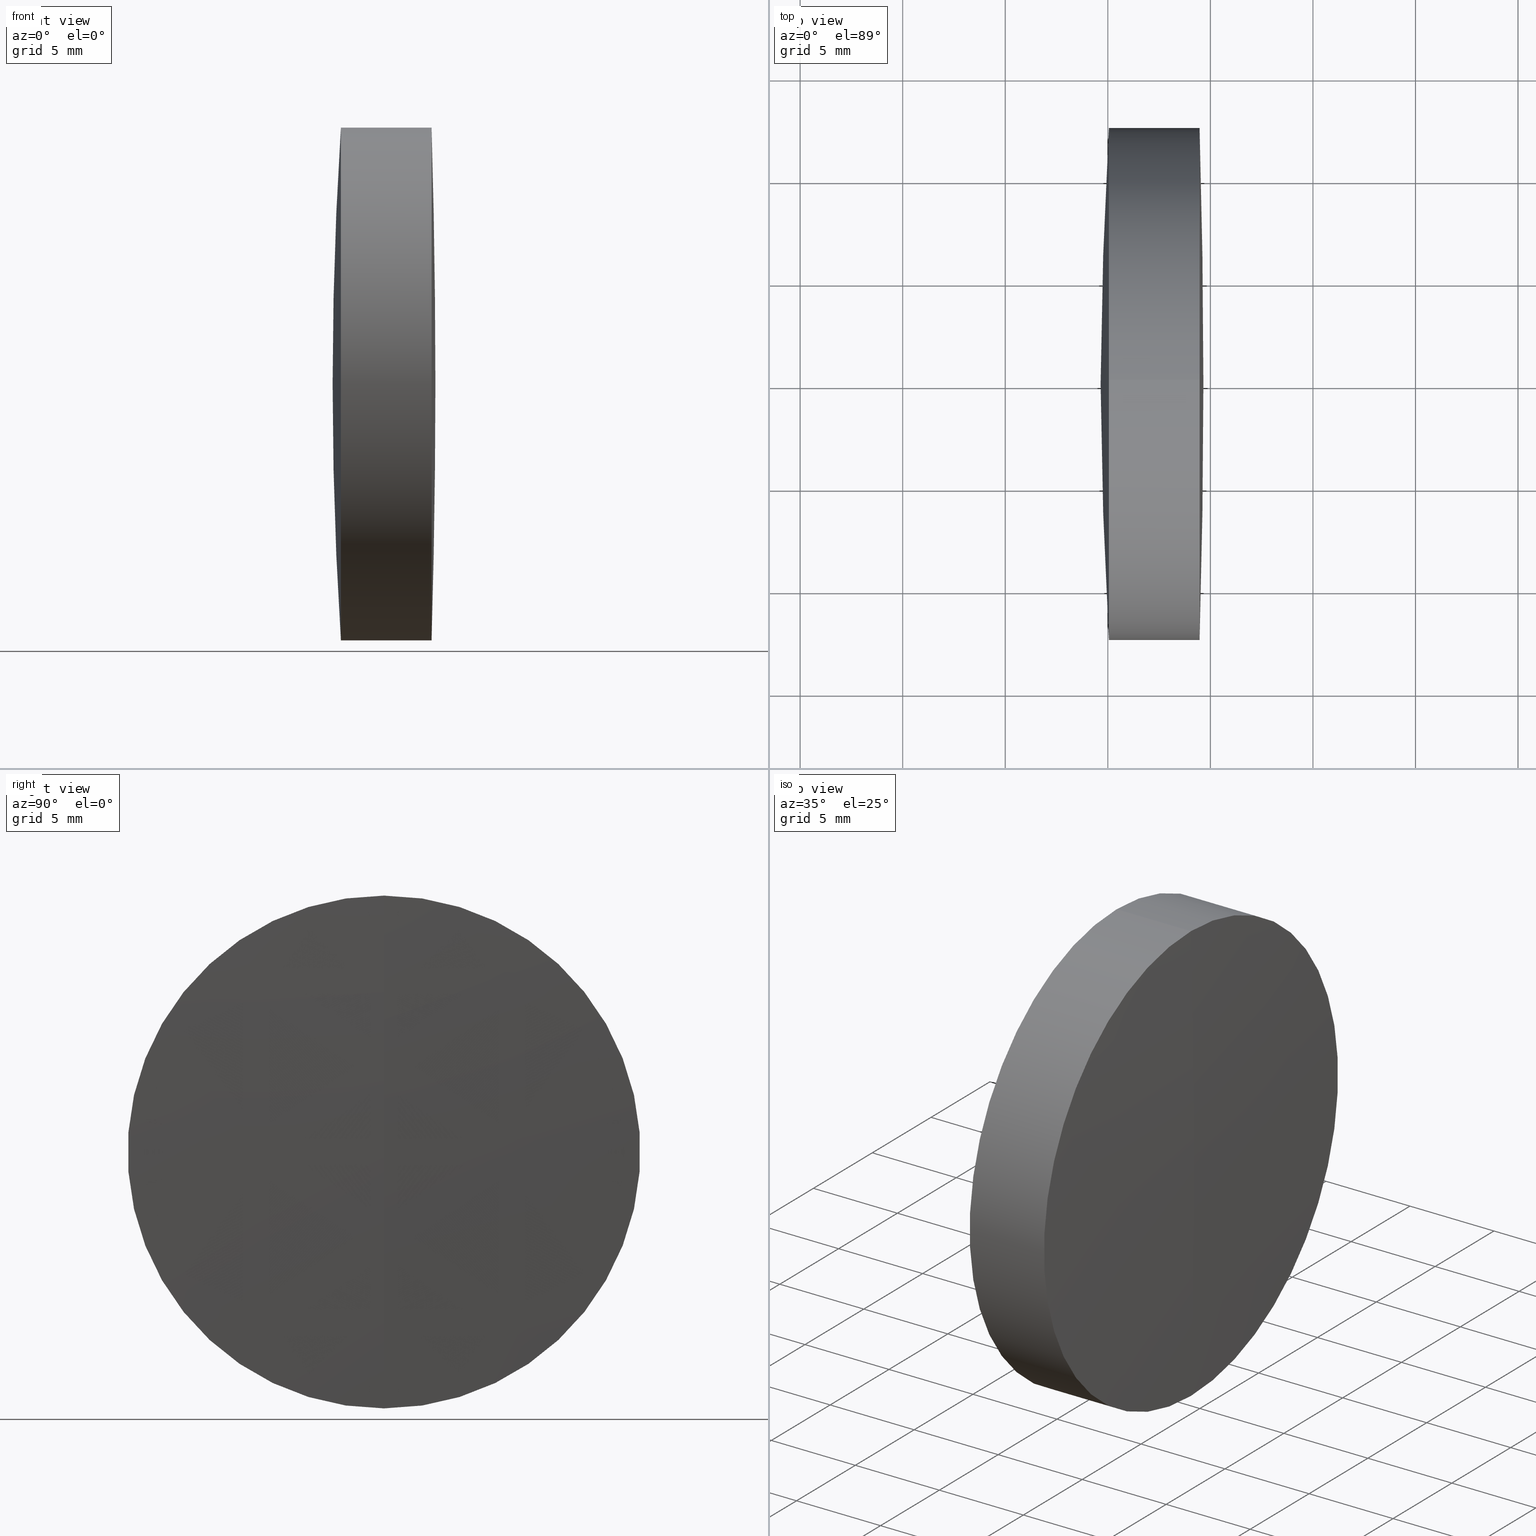
[diagram: canonical four-view strip — front | top / right | iso, engineering-drawing reading convention]
A machine part, canonical four-view strip (front | top / right | iso — engineering-drawing reading convention). The complete STEP part file that produces these views, byte-faithful:
ISO-10303-21;
HEADER;
FILE_DESCRIPTION (( 'STEP AP214' ),
    '1' );
FILE_NAME ('145047.STEP',
    '2019-05-12T07:35:42',
    ( 'user' ),
    ( '΢���й�' ),
    'SwSTEP 2.0',
    'SolidWorks 2016',
    '' );
FILE_SCHEMA (( 'AUTOMOTIVE_DESIGN' ));
ENDSEC;

DATA;
#1 = CIRCLE ( 'NONE', #112, 420.5500000000000100 ) ;
#2 = STYLED_ITEM ( 'NONE', ( #336 ), #41 ) ;
#3 = ORIENTED_EDGE ( 'NONE', *, *, #301, .F. ) ;
#4 = ORIENTED_EDGE ( 'NONE', *, *, #59, .F. ) ;
#5 = DIRECTION ( 'NONE',  ( 0.0000000000000000000, 0.0000000000000000000, 1.000000000000000000 ) ) ;
#6 = CYLINDRICAL_SURFACE ( 'NONE', #232, 12.50000000000000000 ) ;
#7 = CARTESIAN_POINT ( 'NONE',  ( 14.87966897357473400, 0.0000000000000000000, 1.355252715606880500E-017 ) ) ;
#8 = DIRECTION ( 'NONE',  ( 0.0000000000000000000, 0.0000000000000000000, 1.000000000000000000 ) ) ;
#9 = DIRECTION ( 'NONE',  ( 0.0000000000000000000, 1.000000000000000000, 0.0000000000000000000 ) ) ;
#10 = EDGE_CURVE ( 'NONE', #53, #192, #227, .T. ) ;
#11 = ADVANCED_FACE ( 'NONE', ( #218 ), #308, .T. ) ;
#12 = CIRCLE ( 'NONE', #17, 193.6699999999999000 ) ;
#13 = CARTESIAN_POINT ( 'NONE',  ( 142.0467968014847300, 0.0000000000000000000, 0.0000000000000000000 ) ) ;
#14 = EDGE_LOOP ( 'NONE', ( #209, #332, #19 ) ) ;
#15 =( LENGTH_UNIT ( ) NAMED_UNIT ( * ) SI_UNIT ( .MILLI., .METRE. ) );
#16 = EDGE_CURVE ( 'NONE', #53, #261, #25, .T. ) ;
#17 = AXIS2_PLACEMENT_3D ( 'NONE', #110, #149, #316 ) ;
#18 = EDGE_LOOP ( 'NONE', ( #4, #299, #42, #206 ) ) ;
#19 = ORIENTED_EDGE ( 'NONE', *, *, #194, .F. ) ;
#20 = COLOUR_RGB ( '',1.000000000000000000, 1.000000000000000000, 1.000000000000000000 ) ;
#21 = CLOSED_SHELL ( 'NONE', ( #281, #182, #176, #86, #197, #241 ) ) ;
#22 = ORIENTED_EDGE ( 'NONE', *, *, #111, .F. ) ;
#23 = DIRECTION ( 'NONE',  ( 0.0000000000000000000, 0.0000000000000000000, 1.000000000000000000 ) ) ;
#24 = AXIS2_PLACEMENT_3D ( 'NONE', #320, #141, #122 ) ;
#25 = CIRCLE ( 'NONE', #262, 127.7800000000000300 ) ;
#26 = DIRECTION ( 'NONE',  ( 0.0000000000000000000, 1.000000000000000000, 0.0000000000000000000 ) ) ;
#27 = CIRCLE ( 'NONE', #282, 127.7800000000000300 ) ;
#28 = ORIENTED_EDGE ( 'NONE', *, *, #59, .T. ) ;
#29 = ORIENTED_EDGE ( 'NONE', *, *, #226, .T. ) ;
#30 = APPLICATION_PROTOCOL_DEFINITION ( 'draft international standard', 'automotive_design', 1998, #264 ) ;
#31 = CARTESIAN_POINT ( 'NONE',  ( 142.0467968014847300, 1.530808498934191500E-015, -12.50000000000000000 ) ) ;
#32 = CARTESIAN_POINT ( 'NONE',  ( 139.6496689735747900, 0.0000000000000000000, 1.183921663207332100E-014 ) ) ;
#33 = STYLED_ITEM ( 'NONE', ( #146 ), #62 ) ;
#34 = FACE_OUTER_BOUND ( 'NONE', #267, .T. ) ;
#35 = ORIENTED_EDGE ( 'NONE', *, *, #231, .F. ) ;
#36 = DIRECTION ( 'NONE',  ( 0.0000000000000000000, 1.000000000000000000, 0.0000000000000000000 ) ) ;
#37 = COLOUR_RGB ( '',1.000000000000000000, 1.000000000000000000, 1.000000000000000000 ) ;
#38 = FACE_OUTER_BOUND ( 'NONE', #279, .T. ) ;
#39 = CARTESIAN_POINT ( 'NONE',  ( -9.702612178336682500, 0.0000000000000000000, 0.0000000000000000000 ) ) ;
#40 = EDGE_CURVE ( 'NONE', #330, #192, #142, .T. ) ;
#41 = MANIFOLD_SOLID_BREP ( '��ת3', #21 ) ;
#42 = ORIENTED_EDGE ( 'NONE', *, *, #40, .T. ) ;
#43 = CLOSED_SHELL ( 'NONE', ( #11, #150, #247, #340, #116, #207 ) ) ;
#44 = PRESENTATION_LAYER_ASSIGNMENT (  '', '', ( #33 ) ) ;
#45 =( NAMED_UNIT ( * ) SI_UNIT ( $, .STERADIAN. ) SOLID_ANGLE_UNIT ( ) );
#46 = VERTEX_POINT ( 'NONE', #32 ) ;
#47 = DIRECTION ( 'NONE',  ( 0.0000000000000000000, 1.000000000000000000, 0.0000000000000000000 ) ) ;
#48 = CARTESIAN_POINT ( 'NONE',  ( 0.0000000000000000000, 0.0000000000000000000, 0.0000000000000000000 ) ) ;
#49 = CARTESIAN_POINT ( 'NONE',  ( 142.6596689735747500, 0.0000000000000000000, 7.837820926908511600E-015 ) ) ;
#50 = EDGE_CURVE ( 'NONE', #192, #261, #275, .T. ) ;
#51 = UNCERTAINTY_MEASURE_WITH_UNIT (LENGTH_MEASURE( 1.000000000000000100E-005 ), #186, 'distance_accuracy_value', 'NONE');
#52 = FACE_OUTER_BOUND ( 'NONE', #14, .T. ) ;
#53 = VERTEX_POINT ( 'NONE', #49 ) ;
#54 = CARTESIAN_POINT ( 'NONE',  ( -275.8903310264252600, 0.0000000000000000000, 0.0000000000000000000 ) ) ;
#55 = AXIS2_PLACEMENT_3D ( 'NONE', #134, #283, #341 ) ;
#56 = CARTESIAN_POINT ( 'NONE',  ( -9.702612178336682500, 0.0000000000000000000, 0.0000000000000000000 ) ) ;
#57 = CARTESIAN_POINT ( 'NONE',  ( 333.3196689735746600, 0.0000000000000000000, -1.965064747006724300E-017 ) ) ;
#58 = DIRECTION ( 'NONE',  ( 0.0000000000000000000, 0.0000000000000000000, 1.000000000000000000 ) ) ;
#59 = EDGE_CURVE ( 'NONE', #83, #261, #346, .T. ) ;
#60 = AXIS2_PLACEMENT_3D ( 'NONE', #97, #79, #128 ) ;
#61 = CARTESIAN_POINT ( 'NONE',  ( -275.8903310264252600, 0.0000000000000000000, 0.0000000000000000000 ) ) ;
#62 = MANIFOLD_SOLID_BREP ( '��ת1', #43 ) ;
#63 = EDGE_CURVE ( 'NONE', #251, #330, #1, .T. ) ;
#64 = PRODUCT_DEFINITION_CONTEXT ( 'detailed design', #169, 'design' ) ;
#65 = CIRCLE ( 'NONE', #91, 12.50000000000000000 ) ;
#66 = EDGE_CURVE ( 'NONE', #244, #200, #161, .T. ) ;
#67 =( GEOMETRIC_REPRESENTATION_CONTEXT ( 3 ) GLOBAL_UNCERTAINTY_ASSIGNED_CONTEXT ( ( #124 ) ) GLOBAL_UNIT_ASSIGNED_CONTEXT ( ( #277, #158, #165 ) ) REPRESENTATION_CONTEXT ( 'NONE', 'WORKASPACE' ) );
#68 = DIRECTION ( 'NONE',  ( -1.000000000000000000, -0.0000000000000000000, -0.0000000000000000000 ) ) ;
#69 = EDGE_CURVE ( 'NONE', #88, #312, #162, .T. ) ;
#70 = ORIENTED_EDGE ( 'NONE', *, *, #63, .F. ) ;
#71 = DIRECTION ( 'NONE',  ( 0.0000000000000000000, 0.0000000000000000000, 1.000000000000000000 ) ) ;
#72 = SURFACE_STYLE_USAGE ( .BOTH. , #145 ) ;
#73 = FILL_AREA_STYLE_COLOUR ( '', #198 ) ;
#74 =( NAMED_UNIT ( * ) SI_UNIT ( $, .STERADIAN. ) SOLID_ANGLE_UNIT ( ) );
#75 = SPHERICAL_SURFACE ( 'NONE', #138, 420.5500000000000100 ) ;
#76 = CARTESIAN_POINT ( 'NONE',  ( 144.4738592895435300, 1.530808498934196100E-015, -12.50000000000002000 ) ) ;
#77 = AXIS2_PLACEMENT_3D ( 'NONE', #13, #189, #100 ) ;
#78 = ORIENTED_EDGE ( 'NONE', *, *, #50, .T. ) ;
#79 = DIRECTION ( 'NONE',  ( -1.000000000000000000, -0.0000000000000000000, -0.0000000000000000000 ) ) ;
#80 =( NAMED_UNIT ( * ) SI_UNIT ( $, .STERADIAN. ) SOLID_ANGLE_UNIT ( ) );
#81 = ADVANCED_BREP_SHAPE_REPRESENTATION ( '145047', ( #62, #41, #278 ), #190 ) ;
#82 = VECTOR ( 'NONE', #334, 1000.000000000000000 ) ;
#83 = VERTEX_POINT ( 'NONE', #76 ) ;
#84 = AXIS2_PLACEMENT_3D ( 'NONE', #221, #333, #310 ) ;
#85 = AXIS2_PLACEMENT_3D ( 'NONE', #215, #271, #8 ) ;
#86 = ADVANCED_FACE ( 'NONE', ( #130 ), #311, .F. ) ;
#87 = ORIENTED_EDGE ( 'NONE', *, *, #10, .T. ) ;
#88 = VERTEX_POINT ( 'NONE', #305 ) ;
#89 = DIRECTION ( 'NONE',  ( -1.000000000000000000, -0.0000000000000000000, -0.0000000000000000000 ) ) ;
#90 = EDGE_CURVE ( 'NONE', #261, #192, #329, .T. ) ;
#91 = AXIS2_PLACEMENT_3D ( 'NONE', #92, #285, #58 ) ;
#92 = CARTESIAN_POINT ( 'NONE',  ( 142.0467968014847300, 0.0000000000000000000, 0.0000000000000000000 ) ) ;
#93 = CARTESIAN_POINT ( 'NONE',  ( -275.8903310264252600, 0.0000000000000000000, 0.0000000000000000000 ) ) ;
#94 = DIRECTION ( 'NONE',  ( 0.0000000000000000000, 0.0000000000000000000, 1.000000000000000000 ) ) ;
#95 = MECHANICAL_DESIGN_GEOMETRIC_PRESENTATION_REPRESENTATION (  '', ( #33 ), #129 ) ;
#96 = DIRECTION ( 'NONE',  ( 0.0000000000000000000, 0.0000000000000000000, 1.000000000000000000 ) ) ;
#97 = CARTESIAN_POINT ( 'NONE',  ( 140.0534823293508600, 0.0000000000000000000, 0.0000000000000000000 ) ) ;
#98 = SHAPE_DEFINITION_REPRESENTATION ( #163, #81 ) ;
#99 = FILL_AREA_STYLE_COLOUR ( '', #20 ) ;
#100 = DIRECTION ( 'NONE',  ( 0.0000000000000000000, 0.0000000000000000000, 1.000000000000000000 ) ) ;
#101 = LINE ( 'NONE', #205, #82 ) ;
#102 = SURFACE_SIDE_STYLE ('',( #166 ) ) ;
#103 = MECHANICAL_DESIGN_GEOMETRIC_PRESENTATION_REPRESENTATION (  '', ( #2 ), #67 ) ;
#104 = ORIENTED_EDGE ( 'NONE', *, *, #226, .F. ) ;
#105 = ORIENTED_EDGE ( 'NONE', *, *, #16, .F. ) ;
#106 = CARTESIAN_POINT ( 'NONE',  ( 333.3196689735746600, 0.0000000000000000000, -1.965064747006724300E-017 ) ) ;
#107 = APPLICATION_PROTOCOL_DEFINITION ( 'draft international standard', 'automotive_design', 1998, #169 ) ;
#108 = EDGE_CURVE ( 'NONE', #83, #330, #294, .T. ) ;
#109 = AXIS2_PLACEMENT_3D ( 'NONE', #121, #148, #5 ) ;
#110 = CARTESIAN_POINT ( 'NONE',  ( 333.3196689735746600, 0.0000000000000000000, -1.965064747006724300E-017 ) ) ;
#111 = EDGE_CURVE ( 'NONE', #244, #46, #168, .T. ) ;
#112 = AXIS2_PLACEMENT_3D ( 'NONE', #54, #291, #289 ) ;
#113 = DIRECTION ( 'NONE',  ( -0.0000000000000000000, 1.000000000000000000, 1.224646799147353200E-016 ) ) ;
#114 = DIRECTION ( 'NONE',  ( 0.0000000000000000000, 0.0000000000000000000, 1.000000000000000000 ) ) ;
#115 = SPHERICAL_SURFACE ( 'NONE', #160, 420.5500000000000100 ) ;
#116 = ADVANCED_FACE ( 'NONE', ( #266 ), #6, .T. ) ;
#117 = ORIENTED_EDGE ( 'NONE', *, *, #314, .F. ) ;
#118 = PRODUCT ( '145047', '145047', '', ( #274 ) ) ;
#119 = DIRECTION ( 'NONE',  ( 0.0000000000000000000, 0.0000000000000000000, 1.000000000000000000 ) ) ;
#120 = AXIS2_PLACEMENT_3D ( 'NONE', #157, #36, #216 ) ;
#121 = CARTESIAN_POINT ( 'NONE',  ( 14.87966897357473400, 0.0000000000000000000, 1.355252715606880500E-017 ) ) ;
#122 = DIRECTION ( 'NONE',  ( 0.0000000000000000000, 0.0000000000000000000, 1.000000000000000000 ) ) ;
#123 = CARTESIAN_POINT ( 'NONE',  ( 140.0534823293508600, 0.0000000000000000000, 0.0000000000000000000 ) ) ;
#124 = UNCERTAINTY_MEASURE_WITH_UNIT (LENGTH_MEASURE( 1.000000000000000100E-005 ), #277, 'distance_accuracy_value', 'NONE');
#125 = CARTESIAN_POINT ( 'NONE',  ( 14.87966897357473400, 0.0000000000000000000, 1.355252715606880500E-017 ) ) ;
#126 = DIRECTION ( 'NONE',  ( 0.0000000000000000000, 0.0000000000000000000, 1.000000000000000000 ) ) ;
#127 = SPHERICAL_SURFACE ( 'NONE', #120, 127.7800000000000300 ) ;
#128 = DIRECTION ( 'NONE',  ( 0.0000000000000000000, 0.0000000000000000000, 1.000000000000000000 ) ) ;
#129 =( GEOMETRIC_REPRESENTATION_CONTEXT ( 3 ) GLOBAL_UNCERTAINTY_ASSIGNED_CONTEXT ( ( #51 ) ) GLOBAL_UNIT_ASSIGNED_CONTEXT ( ( #186, #259, #80 ) ) REPRESENTATION_CONTEXT ( 'NONE', 'WORKASPACE' ) );
#130 = FACE_OUTER_BOUND ( 'NONE', #136, .T. ) ;
#131 = EDGE_LOOP ( 'NONE', ( #177, #318, #187 ) ) ;
#132 = EDGE_LOOP ( 'NONE', ( #317, #288, #3 ) ) ;
#133 = DIRECTION ( 'NONE',  ( -1.000000000000000000, -0.0000000000000000000, -0.0000000000000000000 ) ) ;
#134 = CARTESIAN_POINT ( 'NONE',  ( 14.87966897357473400, 0.0000000000000000000, 1.355252715606880500E-017 ) ) ;
#135 = DIRECTION ( 'NONE',  ( -1.000000000000000000, -0.0000000000000000000, -0.0000000000000000000 ) ) ;
#136 = EDGE_LOOP ( 'NONE', ( #105, #87, #78 ) ) ;
#137 = FILL_AREA_STYLE_COLOUR ( '', #37 ) ;
#138 = AXIS2_PLACEMENT_3D ( 'NONE', #93, #47, #263 ) ;
#139 = DIRECTION ( 'NONE',  ( -0.0000000000000000000, 1.000000000000000000, 1.224646799147353200E-016 ) ) ;
#140 = PRESENTATION_STYLE_ASSIGNMENT (( #210 ) ) ;
#141 = DIRECTION ( 'NONE',  ( -1.000000000000000000, -0.0000000000000000000, -0.0000000000000000000 ) ) ;
#142 = LINE ( 'NONE', #217, #322 ) ;
#143 = AXIS2_PLACEMENT_3D ( 'NONE', #313, #331, #114 ) ;
#144 = SURFACE_SIDE_STYLE ('',( #342 ) ) ;
#145 = SURFACE_SIDE_STYLE ('',( #249 ) ) ;
#146 = PRESENTATION_STYLE_ASSIGNMENT (( #315 ) ) ;
#147 = DIRECTION ( 'NONE',  ( 0.0000000000000000000, 0.0000000000000000000, 1.000000000000000000 ) ) ;
#148 = DIRECTION ( 'NONE',  ( 0.0000000000000000000, 1.000000000000000000, 0.0000000000000000000 ) ) ;
#149 = DIRECTION ( 'NONE',  ( 0.0000000000000000000, -1.000000000000000000, 0.0000000000000000000 ) ) ;
#150 = ADVANCED_FACE ( 'NONE', ( #345 ), #170, .T. ) ;
#151 = CYLINDRICAL_SURFACE ( 'NONE', #85, 12.50000000000005700 ) ;
#152 = CARTESIAN_POINT ( 'NONE',  ( -275.8903310264252600, 0.0000000000000000000, 0.0000000000000000000 ) ) ;
#153 = EDGE_CURVE ( 'NONE', #251, #83, #173, .T. ) ;
#154 = ORIENTED_EDGE ( 'NONE', *, *, #194, .T. ) ;
#155 = AXIS2_PLACEMENT_3D ( 'NONE', #56, #135, #71 ) ;
#156 = CARTESIAN_POINT ( 'NONE',  ( 142.0467968014847300, 0.0000000000000000000, 12.50000000000000000 ) ) ;
#157 = CARTESIAN_POINT ( 'NONE',  ( 14.87966897357473400, 0.0000000000000000000, 1.355252715606880500E-017 ) ) ;
#158 =( NAMED_UNIT ( * ) PLANE_ANGLE_UNIT ( ) SI_UNIT ( $, .RADIAN. ) );
#159 = EDGE_CURVE ( 'NONE', #88, #180, #27, .T. ) ;
#160 = AXIS2_PLACEMENT_3D ( 'NONE', #152, #9, #126 ) ;
#161 = CIRCLE ( 'NONE', #60, 12.50000000000000000 ) ;
#162 = CIRCLE ( 'NONE', #55, 127.7800000000000300 ) ;
#163 = PRODUCT_DEFINITION_SHAPE ( 'NONE', 'NONE',  #290 ) ;
#164 = ORIENTED_EDGE ( 'NONE', *, *, #321, .F. ) ;
#165 =( NAMED_UNIT ( * ) SI_UNIT ( $, .STERADIAN. ) SOLID_ANGLE_UNIT ( ) );
#166 = SURFACE_STYLE_FILL_AREA ( #234 ) ;
#167 = AXIS2_PLACEMENT_3D ( 'NONE', #123, #254, #253 ) ;
#168 = CIRCLE ( 'NONE', #323, 193.6699999999999000 ) ;
#169 = APPLICATION_CONTEXT ( 'automotive_design' ) ;
#170 = CYLINDRICAL_SURFACE ( 'NONE', #155, 12.50000000000000000 ) ;
#171 = ORIENTED_EDGE ( 'NONE', *, *, #10, .F. ) ;
#172 = AXIS2_PLACEMENT_3D ( 'NONE', #280, #89, #258 ) ;
#173 = CIRCLE ( 'NONE', #302, 420.5500000000000100 ) ;
#174 = DIRECTION ( 'NONE',  ( 0.0000000000000000000, -1.224646799147353500E-016, 1.000000000000000000 ) ) ;
#175 = EDGE_CURVE ( 'NONE', #312, #200, #101, .T. ) ;
#176 = ADVANCED_FACE ( 'NONE', ( #223 ), #212, .F. ) ;
#177 = ORIENTED_EDGE ( 'NONE', *, *, #153, .F. ) ;
#178 = DIRECTION ( 'NONE',  ( 0.0000000000000000000, -1.224646799147353500E-016, 1.000000000000000000 ) ) ;
#179 = SPHERICAL_SURFACE ( 'NONE', #143, 193.6699999999999000 ) ;
#180 = VERTEX_POINT ( 'NONE', #31 ) ;
#181 = PRESENTATION_LAYER_ASSIGNMENT (  '', '', ( #2 ) ) ;
#182 = ADVANCED_FACE ( 'NONE', ( #34 ), #151, .T. ) ;
#183 = DIRECTION ( 'NONE',  ( -1.000000000000000000, -0.0000000000000000000, -0.0000000000000000000 ) ) ;
#184 = AXIS2_PLACEMENT_3D ( 'NONE', #57, #307, #119 ) ;
#185 = CARTESIAN_POINT ( 'NONE',  ( 142.0467968014847300, 1.530808498934205900E-015, -12.50000000000011900 ) ) ;
#186 =( LENGTH_UNIT ( ) NAMED_UNIT ( * ) SI_UNIT ( .MILLI., .METRE. ) );
#187 = ORIENTED_EDGE ( 'NONE', *, *, #108, .F. ) ;
#188 = ORIENTED_EDGE ( 'NONE', *, *, #153, .T. ) ;
#189 = DIRECTION ( 'NONE',  ( -1.000000000000000000, -0.0000000000000000000, -0.0000000000000000000 ) ) ;
#190 =( GEOMETRIC_REPRESENTATION_CONTEXT ( 3 ) GLOBAL_UNCERTAINTY_ASSIGNED_CONTEXT ( ( #256 ) ) GLOBAL_UNIT_ASSIGNED_CONTEXT ( ( #15, #193, #74 ) ) REPRESENTATION_CONTEXT ( 'NONE', 'WORKASPACE' ) );
#191 = FACE_OUTER_BOUND ( 'NONE', #18, .T. ) ;
#192 = VERTEX_POINT ( 'NONE', #309 ) ;
#193 =( NAMED_UNIT ( * ) PLANE_ANGLE_UNIT ( ) SI_UNIT ( $, .RADIAN. ) );
#194 = EDGE_CURVE ( 'NONE', #200, #46, #12, .T. ) ;
#195 = DIRECTION ( 'NONE',  ( 0.0000000000000000000, 0.0000000000000000000, 1.000000000000000000 ) ) ;
#196 = FILL_AREA_STYLE ('',( #137 ) ) ;
#197 = ADVANCED_FACE ( 'NONE', ( #191 ), #284, .T. ) ;
#198 = COLOUR_RGB ( '',1.000000000000000000, 1.000000000000000000, 1.000000000000000000 ) ;
#199 = CARTESIAN_POINT ( 'NONE',  ( -9.702612178336682500, 1.530808498934191500E-015, -12.50000000000000000 ) ) ;
#200 = VERTEX_POINT ( 'NONE', #203 ) ;
#201 = DIRECTION ( 'NONE',  ( -1.000000000000000000, -0.0000000000000000000, -0.0000000000000000000 ) ) ;
#202 = ORIENTED_EDGE ( 'NONE', *, *, #159, .T. ) ;
#203 = CARTESIAN_POINT ( 'NONE',  ( 140.0534823293508600, 0.0000000000000000000, 12.50000000000007300 ) ) ;
#204 = PRESENTATION_LAYER_ASSIGNMENT (  '', '', ( #208 ) ) ;
#205 = CARTESIAN_POINT ( 'NONE',  ( -9.702612178336682500, 0.0000000000000000000, 12.50000000000000000 ) ) ;
#206 = ORIENTED_EDGE ( 'NONE', *, *, #90, .F. ) ;
#207 = ADVANCED_FACE ( 'NONE', ( #243 ), #127, .T. ) ;
#208 = STYLED_ITEM ( 'NONE', ( #140 ), #81 ) ;
#209 = ORIENTED_EDGE ( 'NONE', *, *, #321, .T. ) ;
#210 = SURFACE_STYLE_USAGE ( .BOTH. , #144 ) ;
#211 = DIRECTION ( 'NONE',  ( 0.0000000000000000000, 0.0000000000000000000, -1.000000000000000000 ) ) ;
#212 = SPHERICAL_SURFACE ( 'NONE', #109, 127.7800000000000300 ) ;
#213 = AXIS2_PLACEMENT_3D ( 'NONE', #238, #240, #147 ) ;
#214 = DIRECTION ( 'NONE',  ( -0.0000000000000000000, 1.000000000000000000, 1.224646799147353200E-016 ) ) ;
#215 = CARTESIAN_POINT ( 'NONE',  ( -0.5519199926577972300, 0.0000000000000000000, 0.0000000000000000000 ) ) ;
#216 = DIRECTION ( 'NONE',  ( 0.0000000000000000000, 0.0000000000000000000, 1.000000000000000000 ) ) ;
#217 = CARTESIAN_POINT ( 'NONE',  ( -0.5519199926577972300, 0.0000000000000000000, 12.50000000000005700 ) ) ;
#218 = FACE_OUTER_BOUND ( 'NONE', #235, .T. ) ;
#219 = ORIENTED_EDGE ( 'NONE', *, *, #66, .F. ) ;
#220 = DIRECTION ( 'NONE',  ( -1.000000000000000000, -0.0000000000000000000, -0.0000000000000000000 ) ) ;
#221 = CARTESIAN_POINT ( 'NONE',  ( -0.5519199926577972300, 0.0000000000000000000, 0.0000000000000000000 ) ) ;
#222 = FACE_OUTER_BOUND ( 'NONE', #131, .T. ) ;
#223 = FACE_OUTER_BOUND ( 'NONE', #324, .T. ) ;
#224 =( GEOMETRIC_REPRESENTATION_CONTEXT ( 3 ) GLOBAL_UNCERTAINTY_ASSIGNED_CONTEXT ( ( #246 ) ) GLOBAL_UNIT_ASSIGNED_CONTEXT ( ( #250, #298, #45 ) ) REPRESENTATION_CONTEXT ( 'NONE', 'WORKASPACE' ) );
#225 = ORIENTED_EDGE ( 'NONE', *, *, #16, .T. ) ;
#226 = EDGE_CURVE ( 'NONE', #312, #180, #65, .T. ) ;
#227 = CIRCLE ( 'NONE', #338, 127.7800000000000300 ) ;
#228 = CARTESIAN_POINT ( 'NONE',  ( 144.6596689735747800, 0.0000000000000000000, 2.575126056907097100E-014 ) ) ;
#229 = FILL_AREA_STYLE ('',( #73 ) ) ;
#230 = CARTESIAN_POINT ( 'NONE',  ( -0.5519199926577972300, 1.530808498934198400E-015, -12.50000000000005700 ) ) ;
#231 = EDGE_CURVE ( 'NONE', #180, #244, #344, .T. ) ;
#232 = AXIS2_PLACEMENT_3D ( 'NONE', #39, #201, #94 ) ;
#233 = CIRCLE ( 'NONE', #172, 12.50000000000002000 ) ;
#234 = FILL_AREA_STYLE ('',( #99 ) ) ;
#235 = EDGE_LOOP ( 'NONE', ( #295, #202, #104 ) ) ;
#236 = ORIENTED_EDGE ( 'NONE', *, *, #175, .F. ) ;
#237 = ORIENTED_EDGE ( 'NONE', *, *, #314, .T. ) ;
#238 = CARTESIAN_POINT ( 'NONE',  ( 14.87966897357473400, 0.0000000000000000000, 1.355252715606880500E-017 ) ) ;
#239 = MECHANICAL_DESIGN_GEOMETRIC_PRESENTATION_REPRESENTATION (  '', ( #208 ), #224 ) ;
#240 = DIRECTION ( 'NONE',  ( 0.0000000000000000000, 1.000000000000000000, 0.0000000000000000000 ) ) ;
#241 = ADVANCED_FACE ( 'NONE', ( #222 ), #75, .T. ) ;
#242 = CIRCLE ( 'NONE', #77, 12.50000000000000000 ) ;
#243 = FACE_OUTER_BOUND ( 'NONE', #132, .T. ) ;
#244 = VERTEX_POINT ( 'NONE', #265 ) ;
#245 = CARTESIAN_POINT ( 'NONE',  ( 142.0467968014847300, 0.0000000000000000000, 0.0000000000000000000 ) ) ;
#246 = UNCERTAINTY_MEASURE_WITH_UNIT (LENGTH_MEASURE( 1.000000000000000100E-005 ), #250, 'distance_accuracy_value', 'NONE');
#247 = ADVANCED_FACE ( 'NONE', ( #52 ), #179, .T. ) ;
#248 = CIRCLE ( 'NONE', #167, 12.50000000000000000 ) ;
#249 = SURFACE_STYLE_FILL_AREA ( #196 ) ;
#250 =( LENGTH_UNIT ( ) NAMED_UNIT ( * ) SI_UNIT ( .MILLI., .METRE. ) );
#251 = VERTEX_POINT ( 'NONE', #228 ) ;
#252 = CARTESIAN_POINT ( 'NONE',  ( 144.4738592895435300, 0.0000000000000000000, 12.50000000000002000 ) ) ;
#253 = DIRECTION ( 'NONE',  ( 0.0000000000000000000, 0.0000000000000000000, 1.000000000000000000 ) ) ;
#254 = DIRECTION ( 'NONE',  ( -1.000000000000000000, -0.0000000000000000000, -0.0000000000000000000 ) ) ;
#255 = EDGE_LOOP ( 'NONE', ( #29, #286, #164, #236 ) ) ;
#256 = UNCERTAINTY_MEASURE_WITH_UNIT (LENGTH_MEASURE( 1.000000000000000100E-005 ), #15, 'distance_accuracy_value', 'NONE');
#257 = AXIS2_PLACEMENT_3D ( 'NONE', #245, #296, #96 ) ;
#258 = DIRECTION ( 'NONE',  ( 0.0000000000000000000, 0.0000000000000000000, 1.000000000000000000 ) ) ;
#259 =( NAMED_UNIT ( * ) PLANE_ANGLE_UNIT ( ) SI_UNIT ( $, .RADIAN. ) );
#260 = DIRECTION ( 'NONE',  ( 0.0000000000000000000, 0.0000000000000000000, 1.000000000000000000 ) ) ;
#261 = VERTEX_POINT ( 'NONE', #185 ) ;
#262 = AXIS2_PLACEMENT_3D ( 'NONE', #7, #113, #174 ) ;
#263 = DIRECTION ( 'NONE',  ( 0.0000000000000000000, 0.0000000000000000000, 1.000000000000000000 ) ) ;
#264 = APPLICATION_CONTEXT ( 'automotive_design' ) ;
#265 = CARTESIAN_POINT ( 'NONE',  ( 140.0534823293508600, 1.530808498934200400E-015, -12.50000000000007300 ) ) ;
#266 = FACE_OUTER_BOUND ( 'NONE', #268, .T. ) ;
#267 = EDGE_LOOP ( 'NONE', ( #237, #28, #292, #337 ) ) ;
#268 = EDGE_LOOP ( 'NONE', ( #35, #276, #273, #219 ) ) ;
#269 = CARTESIAN_POINT ( 'NONE',  ( 14.87966897357473400, 0.0000000000000000000, 1.355252715606880500E-017 ) ) ;
#270 = DIRECTION ( 'NONE',  ( 0.0000000000000000000, -1.000000000000000000, 0.0000000000000000000 ) ) ;
#271 = DIRECTION ( 'NONE',  ( -1.000000000000000000, -0.0000000000000000000, -0.0000000000000000000 ) ) ;
#272 = VECTOR ( 'NONE', #133, 1000.000000000000000 ) ;
#273 = ORIENTED_EDGE ( 'NONE', *, *, #175, .T. ) ;
#274 = PRODUCT_CONTEXT ( 'NONE', #264, 'mechanical' ) ;
#275 = CIRCLE ( 'NONE', #327, 12.50000000000009100 ) ;
#276 = ORIENTED_EDGE ( 'NONE', *, *, #301, .T. ) ;
#277 =( LENGTH_UNIT ( ) NAMED_UNIT ( * ) SI_UNIT ( .MILLI., .METRE. ) );
#278 = AXIS2_PLACEMENT_3D ( 'NONE', #48, #195, #326 ) ;
#279 = EDGE_LOOP ( 'NONE', ( #70, #188, #117 ) ) ;
#280 = CARTESIAN_POINT ( 'NONE',  ( 144.4738592895435300, 0.0000000000000000000, 0.0000000000000000000 ) ) ;
#281 = ADVANCED_FACE ( 'NONE', ( #38 ), #115, .T. ) ;
#282 = AXIS2_PLACEMENT_3D ( 'NONE', #269, #304, #178 ) ;
#283 = DIRECTION ( 'NONE',  ( 0.0000000000000000000, -1.000000000000000000, 0.0000000000000000000 ) ) ;
#284 = CYLINDRICAL_SURFACE ( 'NONE', #84, 12.50000000000005700 ) ;
#285 = DIRECTION ( 'NONE',  ( -1.000000000000000000, -0.0000000000000000000, -0.0000000000000000000 ) ) ;
#286 = ORIENTED_EDGE ( 'NONE', *, *, #231, .T. ) ;
#287 = CARTESIAN_POINT ( 'NONE',  ( 142.0467968014847300, 0.0000000000000000000, 0.0000000000000000000 ) ) ;
#288 = ORIENTED_EDGE ( 'NONE', *, *, #69, .T. ) ;
#289 = DIRECTION ( 'NONE',  ( 0.0000000000000000000, 0.0000000000000000000, -1.000000000000000000 ) ) ;
#290 = PRODUCT_DEFINITION ( 'δ֪', '', #300, #64 ) ;
#291 = DIRECTION ( 'NONE',  ( 0.0000000000000000000, -1.000000000000000000, 0.0000000000000000000 ) ) ;
#292 = ORIENTED_EDGE ( 'NONE', *, *, #50, .F. ) ;
#293 = ORIENTED_EDGE ( 'NONE', *, *, #66, .T. ) ;
#294 = CIRCLE ( 'NONE', #24, 12.50000000000002000 ) ;
#295 = ORIENTED_EDGE ( 'NONE', *, *, #69, .F. ) ;
#296 = DIRECTION ( 'NONE',  ( -1.000000000000000000, -0.0000000000000000000, -0.0000000000000000000 ) ) ;
#297 = ORIENTED_EDGE ( 'NONE', *, *, #90, .T. ) ;
#298 =( NAMED_UNIT ( * ) PLANE_ANGLE_UNIT ( ) SI_UNIT ( $, .RADIAN. ) );
#299 = ORIENTED_EDGE ( 'NONE', *, *, #108, .T. ) ;
#300 = PRODUCT_DEFINITION_FORMATION_WITH_SPECIFIED_SOURCE ( '�κ�', '', #118, .NOT_KNOWN. ) ;
#301 = EDGE_CURVE ( 'NONE', #180, #312, #242, .T. ) ;
#302 = AXIS2_PLACEMENT_3D ( 'NONE', #61, #139, #325 ) ;
#303 = DIRECTION ( 'NONE',  ( 0.0000000000000000000, -1.224646799147353200E-016, 1.000000000000000000 ) ) ;
#304 = DIRECTION ( 'NONE',  ( -0.0000000000000000000, 1.000000000000000000, 1.224646799147353200E-016 ) ) ;
#305 = CARTESIAN_POINT ( 'NONE',  ( 142.6596689735747500, 0.0000000000000000000, 7.837820926908511600E-015 ) ) ;
#306 = SPHERICAL_SURFACE ( 'NONE', #184, 193.6699999999999000 ) ;
#307 = DIRECTION ( 'NONE',  ( 0.0000000000000000000, 1.000000000000000000, 0.0000000000000000000 ) ) ;
#308 = SPHERICAL_SURFACE ( 'NONE', #213, 127.7800000000000300 ) ;
#309 = CARTESIAN_POINT ( 'NONE',  ( 142.0467968014847300, 0.0000000000000000000, 12.50000000000011900 ) ) ;
#310 = DIRECTION ( 'NONE',  ( 0.0000000000000000000, 0.0000000000000000000, 1.000000000000000000 ) ) ;
#311 = SPHERICAL_SURFACE ( 'NONE', #335, 127.7800000000000300 ) ;
#312 = VERTEX_POINT ( 'NONE', #156 ) ;
#313 = CARTESIAN_POINT ( 'NONE',  ( 333.3196689735746600, 0.0000000000000000000, -1.965064747006724300E-017 ) ) ;
#314 = EDGE_CURVE ( 'NONE', #330, #83, #233, .T. ) ;
#315 = SURFACE_STYLE_USAGE ( .BOTH. , #102 ) ;
#316 = DIRECTION ( 'NONE',  ( 0.0000000000000000000, 0.0000000000000000000, -1.000000000000000000 ) ) ;
#317 = ORIENTED_EDGE ( 'NONE', *, *, #159, .F. ) ;
#318 = ORIENTED_EDGE ( 'NONE', *, *, #63, .T. ) ;
#319 = PRODUCT_RELATED_PRODUCT_CATEGORY ( 'part', '', ( #118 ) ) ;
#320 = CARTESIAN_POINT ( 'NONE',  ( 144.4738592895435300, 0.0000000000000000000, 0.0000000000000000000 ) ) ;
#321 = EDGE_CURVE ( 'NONE', #200, #244, #248, .T. ) ;
#322 = VECTOR ( 'NONE', #68, 1000.000000000000000 ) ;
#323 = AXIS2_PLACEMENT_3D ( 'NONE', #106, #214, #303 ) ;
#324 = EDGE_LOOP ( 'NONE', ( #171, #225, #297 ) ) ;
#325 = DIRECTION ( 'NONE',  ( 0.0000000000000000000, -1.224646799147353200E-016, 1.000000000000000000 ) ) ;
#326 = DIRECTION ( 'NONE',  ( 1.000000000000000000, 0.0000000000000000000, 0.0000000000000000000 ) ) ;
#327 = AXIS2_PLACEMENT_3D ( 'NONE', #287, #183, #23 ) ;
#328 = FACE_OUTER_BOUND ( 'NONE', #347, .T. ) ;
#329 = CIRCLE ( 'NONE', #257, 12.50000000000009100 ) ;
#330 = VERTEX_POINT ( 'NONE', #252 ) ;
#331 = DIRECTION ( 'NONE',  ( 0.0000000000000000000, 1.000000000000000000, 0.0000000000000000000 ) ) ;
#332 = ORIENTED_EDGE ( 'NONE', *, *, #111, .T. ) ;
#333 = DIRECTION ( 'NONE',  ( -1.000000000000000000, -0.0000000000000000000, -0.0000000000000000000 ) ) ;
#334 = DIRECTION ( 'NONE',  ( -1.000000000000000000, -0.0000000000000000000, -0.0000000000000000000 ) ) ;
#335 = AXIS2_PLACEMENT_3D ( 'NONE', #125, #26, #260 ) ;
#336 = PRESENTATION_STYLE_ASSIGNMENT (( #72 ) ) ;
#337 = ORIENTED_EDGE ( 'NONE', *, *, #40, .F. ) ;
#338 = AXIS2_PLACEMENT_3D ( 'NONE', #339, #270, #211 ) ;
#339 = CARTESIAN_POINT ( 'NONE',  ( 14.87966897357473400, 0.0000000000000000000, 1.355252715606880500E-017 ) ) ;
#340 = ADVANCED_FACE ( 'NONE', ( #328 ), #306, .T. ) ;
#341 = DIRECTION ( 'NONE',  ( 0.0000000000000000000, 0.0000000000000000000, -1.000000000000000000 ) ) ;
#342 = SURFACE_STYLE_FILL_AREA ( #229 ) ;
#343 = VECTOR ( 'NONE', #220, 1000.000000000000000 ) ;
#344 = LINE ( 'NONE', #199, #343 ) ;
#345 = FACE_OUTER_BOUND ( 'NONE', #255, .T. ) ;
#346 = LINE ( 'NONE', #230, #272 ) ;
#347 = EDGE_LOOP ( 'NONE', ( #22, #293, #154 ) ) ;
ENDSEC;
END-ISO-10303-21;
